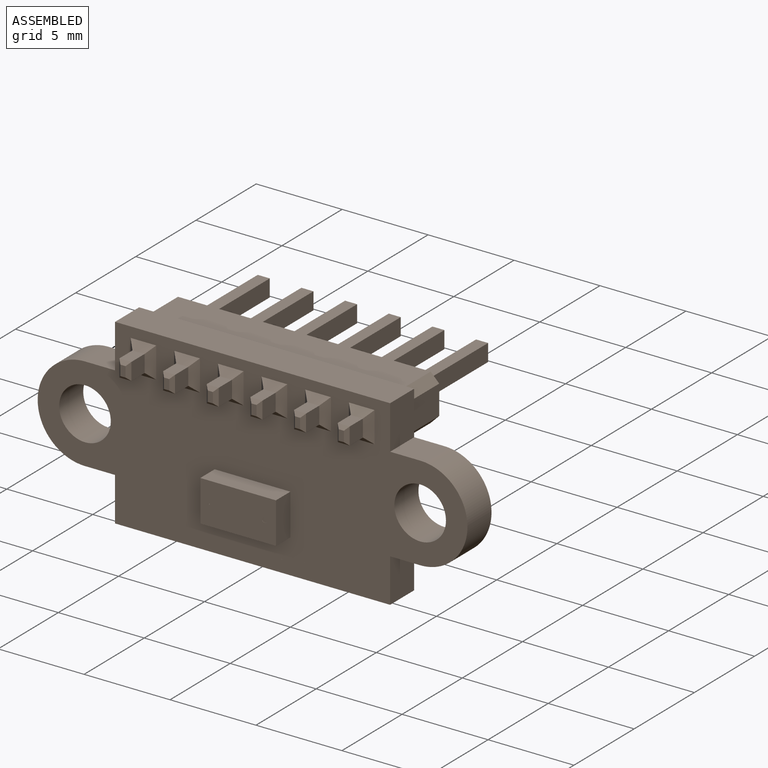
[diagram: assembled view]
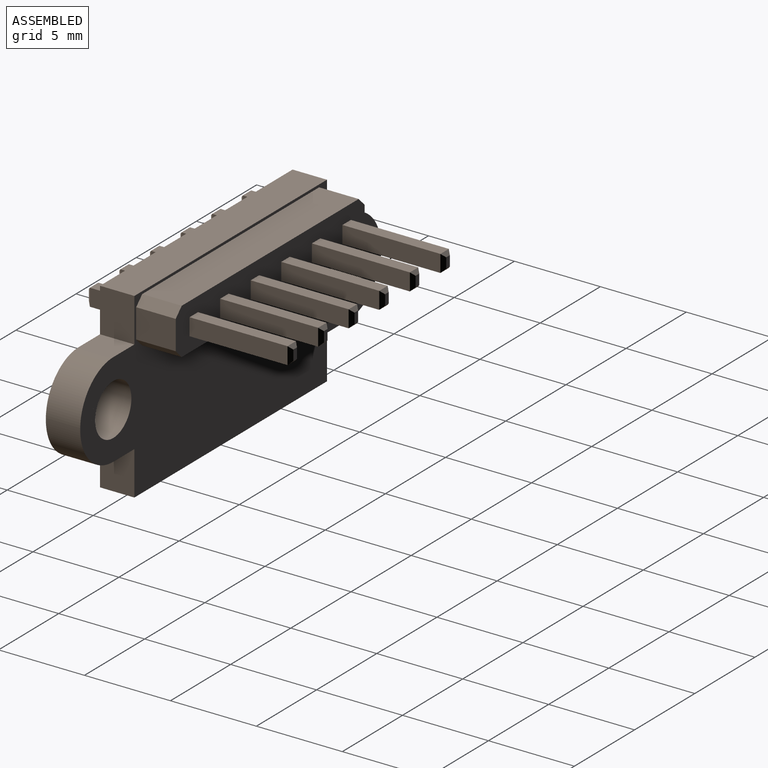
[diagram: assembled view, second angle]
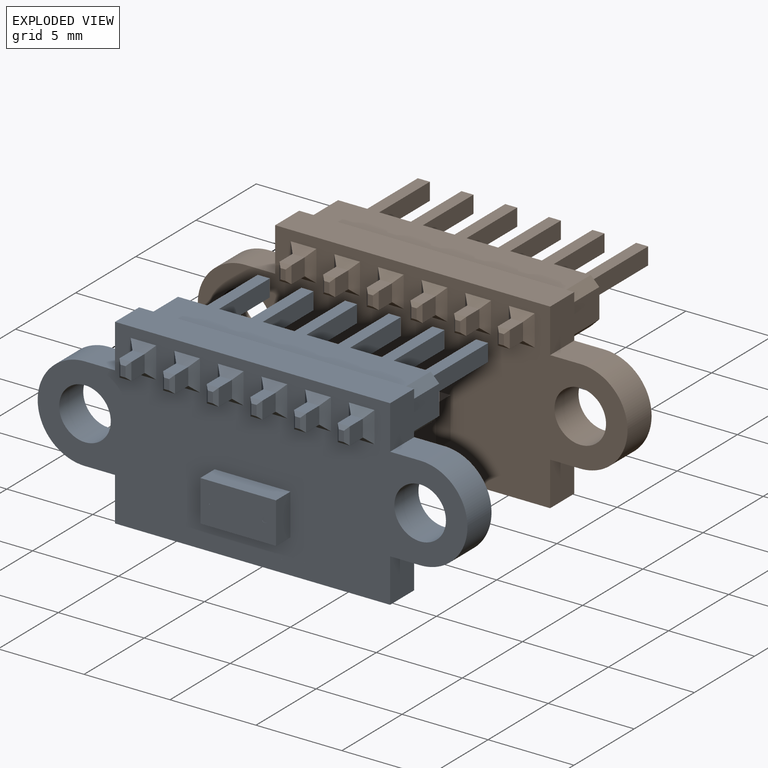
[diagram: exploded view]
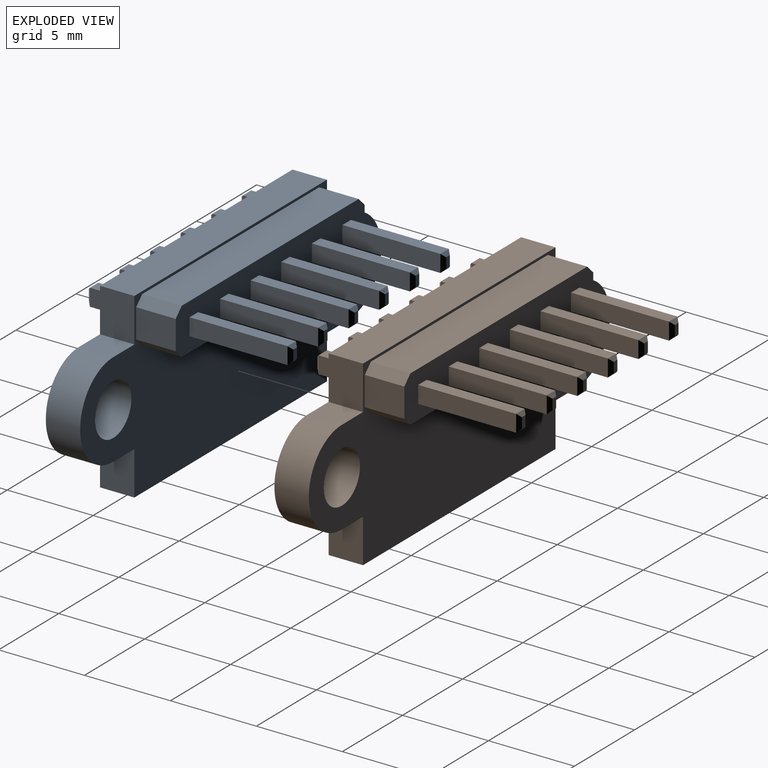
[diagram: exploded view, second angle]
FCSTD DOCUMENT  (FreeCAD 1.0R39109 (Git))
Label: VL53L1XV2
License: All rights reserved
LicenseURL: http://en.wikipedia.org/wiki/All_rights_reserved
objects: App::Part×2, Part::Feature×1, Sketcher::SketchObject×1, PartDesign::Revolution×1, PartDesign::Body×1, App::Link×1
note: 7 computed .brp shape members not serialized (recipe doc carries the construction recipe); baked Part::Feature solids carry a one-line shape summary decoded from their .brp

FEATURE [Part::Feature] Part__Feature  label="GY-VL53L1XV2"
  Placement = pos=(0,0,0) rot=(1,0,0;4.71239rad)
  shape: bbox 25 x 11.9 x 10.6 mm, 311 faces (baked)
FEATURE [Sketcher::SketchObject] Sketch
  ArcFitTolerance = 0
  AttachmentSupport = -> [YZ_Plane001]
  FullyConstrained = true
  MakeInternals = false
  MapMode = 5
  Placement = pos=(0,0,0) rot=(0.57735,0.57735,0.57735;2.0944rad)
  sketch-geometry (3):
    g0: LineSegment StartX=0 StartY=0 StartZ=0 EndX=-500 EndY=120.039 EndZ=0
    g1: LineSegment StartX=-500 StartY=120.039 StartZ=0 EndX=-500 EndY=0 EndZ=0
    g2: LineSegment StartX=-500 StartY=0 StartZ=0 EndX=0 EndY=0 EndZ=0
  constraints (8):
    c: Coincident(g0,g-1)
    c: Coincident(g1,g0)
    c: PointOnObject(g1,g-1)
    c: Vertical(g1)
    c: Coincident(g2,g1)
    c: Coincident(g2,g0)
    c: Angle(g0,g2) = 0.235619
    c: DistanceX(g2,g2) = 500
FEATURE [PartDesign::Revolution] Revolution
  Angle = 360
  Angle2 = 60
  Axis = (0,1,0)
  Base = (0,0,0)
  Placement = pos=(0,0,0) rot=(1,1,1;2.0944rad)
  Profile = -> Sketch
  ReferenceAxis = -> Sketch [H_Axis]
  Suppressed = false
  Type = 0
FEATURE [PartDesign::Body] Body  label="FoV"
  AllowCompound = false
  Group = -> [Sketch,Revolution]
  Origin = -> Origin001
  Placement = pos=(0,-2.2,-2) rot=(0,0,1;0rad)
  Tip = -> Revolution
FEATURE [App::Part] Part  label="VL53L1XV2"
  Group = -> [Part__Feature,Body]
  Origin = -> Origin
FEATURE [App::Link] Link  label="VL53L1XV003"
  LinkedObject = -> Part
FEATURE [App::Part] Part001  label="support_VL53L1XV2"
  Group = -> [Link]
  Origin = -> Origin002
